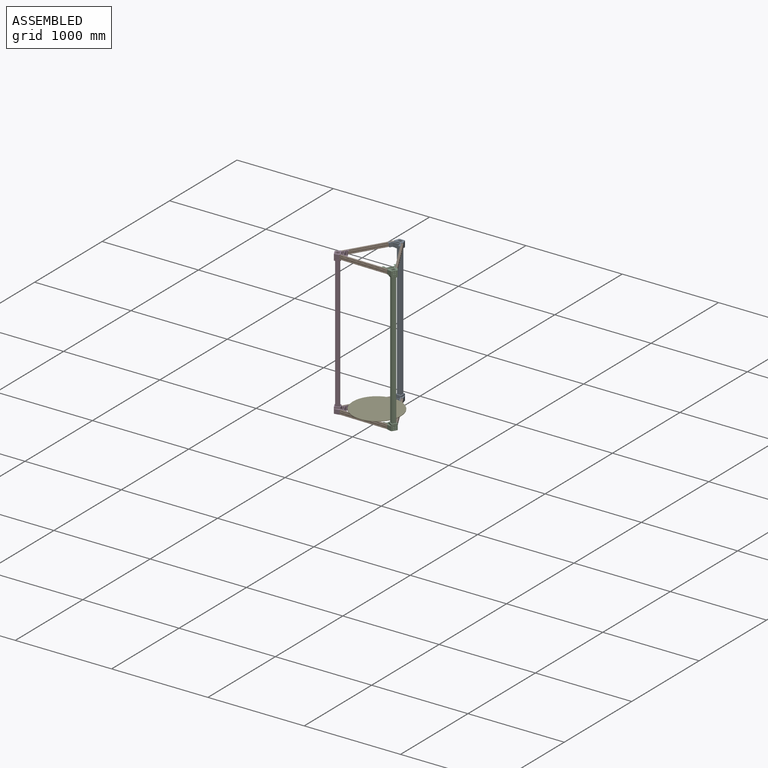
[diagram: assembled view]
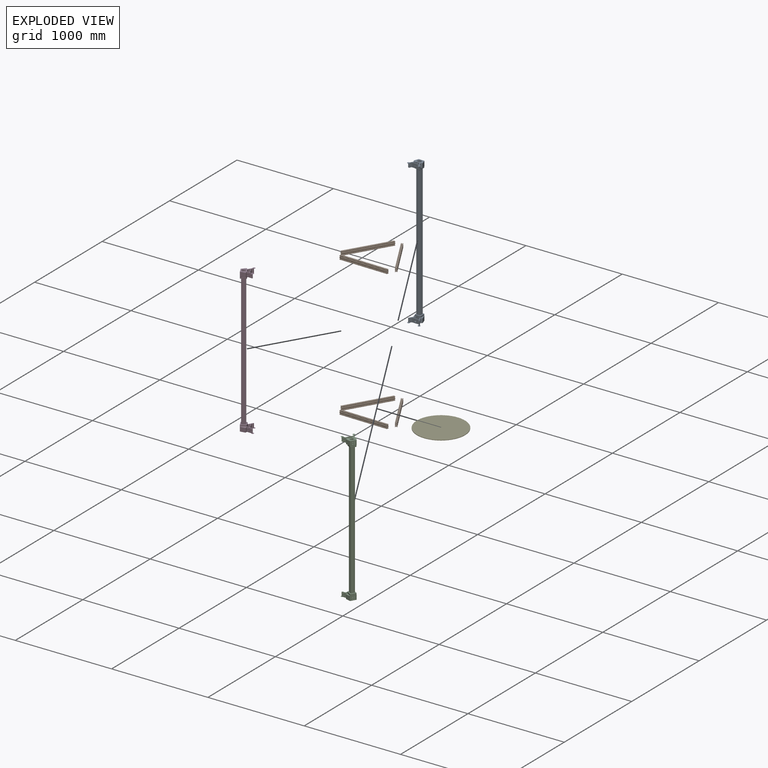
[diagram: exploded view]
GUIDED TOUR — MATED ASSEMBLY WITH SUBASSEMBLIES (Onshape document 57f339af546dad10b447824a, AutoMate assembly 57f339af546dad10b447824a_9c79bd40bd12733219195c9b_e9b3cc5fddb4a0eafcfcd37a_default)

This assembly has 16 component occurrences arranged in 5 top-level units: 1 individual components plus 4 subassemblies (S0, S1, S2, S3). The tour has two levels: first the top level, where each subassembly is treated as one rigid unit; then each subassembly is toured internally in its own section (nesting deeper than one subassembly level is flattened into its subassembly's section).

Components are labeled P0..P15 across the whole record; subassembly units are labeled S0..S3. A mate is a constraint between two units; its type names the relative motion it leaves free:
  FASTENED — locks the two components together rigidly (no relative motion),
  PIN_SLOT — leaves rotation about the listed axis plus translation along a slot free,
  PLANAR — leaves sliding in the plane through the listed point (normal = the listed direction) and rotation about that normal free.
Axis/direction vectors are unit vectors and 'through' points are millimeter coordinates, both in the assembly's world frame.

TOP-LEVEL MATES (between units; each subassembly's internal mates are listed in its own section)
  1. PLANAR "Planar 2": S1 <-> S2, direction (-0.873, -0.487, 0.000) through (192.73, 399.21, -29.00) mm
  2. PIN_SLOT "Pin slot 5": S1 <-> S3, axis (-0.513, -0.858, 0.000) through (-254.05, 194.38, -19.00) mm
  3. PIN_SLOT "Pin slot 8": S1 <-> S0, axis (-0.487, 0.873, 0.000) through (79.72, 622.44, 1436.00) mm
  4. PLANAR "Planar 1": S1 <-> S0, direction (-0.873, -0.487, 0.000) through (192.73, 399.21, -29.00) mm
  5. PLANAR "Planar 5": S1 <-> S3, direction (0.858, -0.513, 0.000) through (-117.24, 403.86, -29.00) mm
  6. PLANAR "Planar 11": S1 <-> S2, direction (-0.873, -0.487, 0.000) through (192.73, 399.21, 1426.00) mm
  7. PIN_SLOT "Pin slot 4": S1 <-> S0, axis (0.487, -0.873, 0.000) through (79.72, 622.44, -19.00) mm
  8. PLANAR "Planar 12": P12 <-> S0, direction (0.000, 0.000, -1.000) through (34.66, 312.58, -6.50) mm
  9. PIN_SLOT "Pin slot 1": S1 <-> S3, axis (-1.000, 0.015, 0.000) through (-216.40, 126.85, -19.00) mm
  10. PIN_SLOT "Pin slot 2": S1 <-> S2, axis (1.000, -0.015, 0.000) through (283.54, 119.35, -19.00) mm
  11. PLANAR "Planar 6": S1 <-> S0, direction (0.858, -0.513, 0.000) through (-117.24, 403.86, -29.00) mm
  12. PIN_SLOT "Pin slot 3": S1 <-> S2, axis (0.487, -0.873, 0.000) through (323.20, 185.72, -19.00) mm
  13. PLANAR "Planar 7": S1 <-> S0, direction (0.858, -0.513, 0.000) through (-117.24, 403.86, 1426.00) mm
  14. PIN_SLOT "Pin slot 7": S1 <-> S2, axis (1.000, -0.015, 0.000) through (283.54, 119.35, 1436.00) mm
  15. PLANAR "Planar 3": S1 <-> S2, direction (0.015, 1.000, 0.000) through (33.72, 133.10, -29.00) mm
  16. PLANAR "Planar 4": S3 <-> S1, direction (-0.015, -1.000, 0.000) through (-187.12, 136.41, -29.00) mm
  17. PIN_SLOT "Pin slot 6": S1 <-> S0, axis (-0.513, -0.858, 0.000) through (2.41, 623.60, 1436.00) mm
  18. PLANAR "Planar 9": S1 <-> S3, direction (0.015, 1.000, 0.000) through (33.72, 133.10, 1426.00) mm
  19. PLANAR "Planar 8": S1 <-> S3, direction (0.858, -0.513, 0.000) through (-117.24, 403.86, 1426.00) mm

TOP-LEVEL ASSEMBLY ORDER
  1. S1 — the base component [order heuristic]
  2. S2 — core [order heuristic]
  3. S0 — core [order heuristic]
  4. S3 — core [order heuristic]
  5. P12 [order verified]
Order-tag legend:
  [order verified] — this step's position reverses a verified removal order: the component was checked to insert without passing through the ones already placed.
  [order heuristic] — the first 4 components form the assembly's core: parts whose collision-free extraction could not be verified, listed in mate-graph order.

Of the 16 component occurrences, 1 carries the full construction recipe — the FeatureScript program that regenerates the part's solid from scratch; the rest are supplied as boundary geometry only. Each toured unit is shown spotlighted twice — assembled, then exploded with a leader line back to its socket (green = recipe-attached component, orange = geometry-only, blue = subassembly unit; the rest desaturated gray).
NOTE — document 2 of 2 of this assembly tour. The two overview renders and the header above are repeated from document 1; the component sections below continue where the previous document stopped.
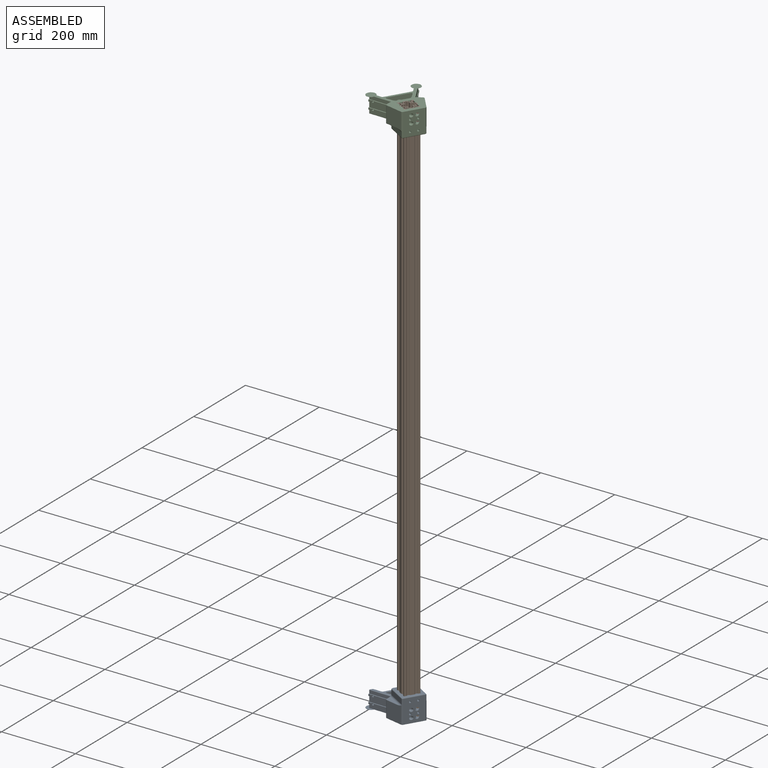
[diagram: subassembly S2 — assembled view]
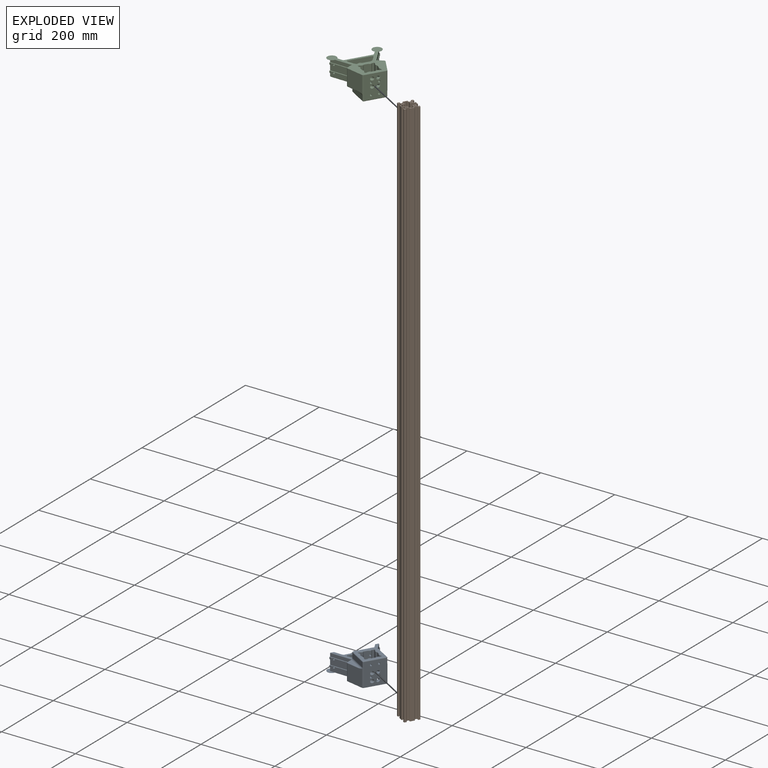
[diagram: subassembly S2 — exploded view]
SUBASSEMBLY S2 TOUR — 3 components, shown here in isolation at its own camera.

INTERNAL MATES
  1. FASTENED "Fastened 1": P3 <-> P10, direction (-0.858, 0.513, 0.000) through (342.04, 129.43, -51.50) mm
  2. FASTENED "Fastened 2": P13 <-> P10, direction (-0.858, 0.513, 0.000) through (342.04, 129.43, 1448.50) mm
  3. FASTENED "Fastened 2": P13 <-> P10, direction (-0.858, 0.513, 0.000) through (342.04, 129.43, 1448.50) mm
  4. FASTENED "Fastened 1": P3 <-> P10, direction (-0.858, 0.513, 0.000) through (342.04, 129.43, -51.50) mm

ASSEMBLY ORDER (within the subassembly)
  1. P10 — the base component [order verified]
  2. P3 [order verified]
  3. P13 [order verified]
Order-tag legend:
  [order verified] — this step's position reverses a verified removal order: the component was checked to insert without passing through the ones already placed.
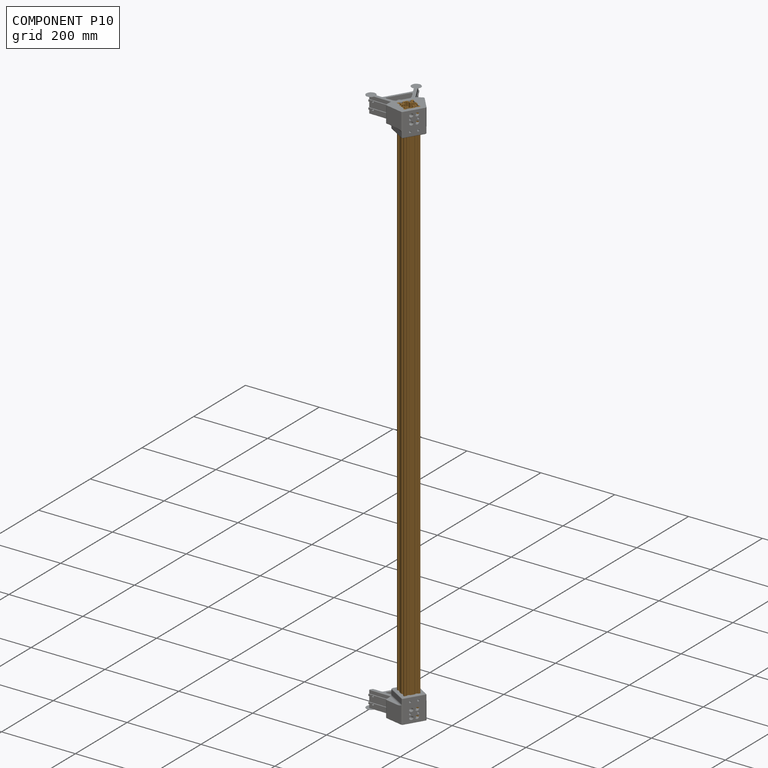
[diagram: component P10 — assembled]
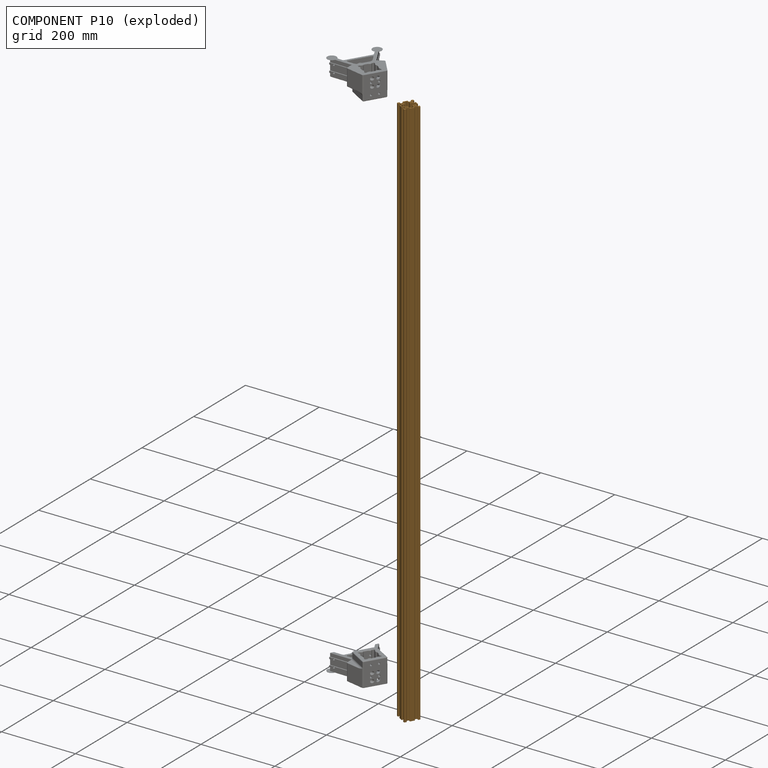
[diagram: component P10 — exploded]
COMPONENT P10 — geometry summary (no construction recipe available for this part):
  bounding box: 1500.0 x 53.5 x 53.5 mm
  B-rep topology: 1 solid, 166 faces, 992 edges
  volume: 687694 mm^3 (16% of its bounding box)
  symmetry: 2-fold rotationally symmetric about the x axis; 2-fold rotationally symmetric about the y axis; revolution-symmetric about the z axis through its bounding-box center; mirror-symmetric across its x mid-plane, y mid-plane, z mid-plane
Held by: FASTENED mate "Fastened 1" to P3; FASTENED mate "Fastened 2" to P13; FASTENED mate "Fastened 2" to P13; FASTENED mate "Fastened 1" to P3.
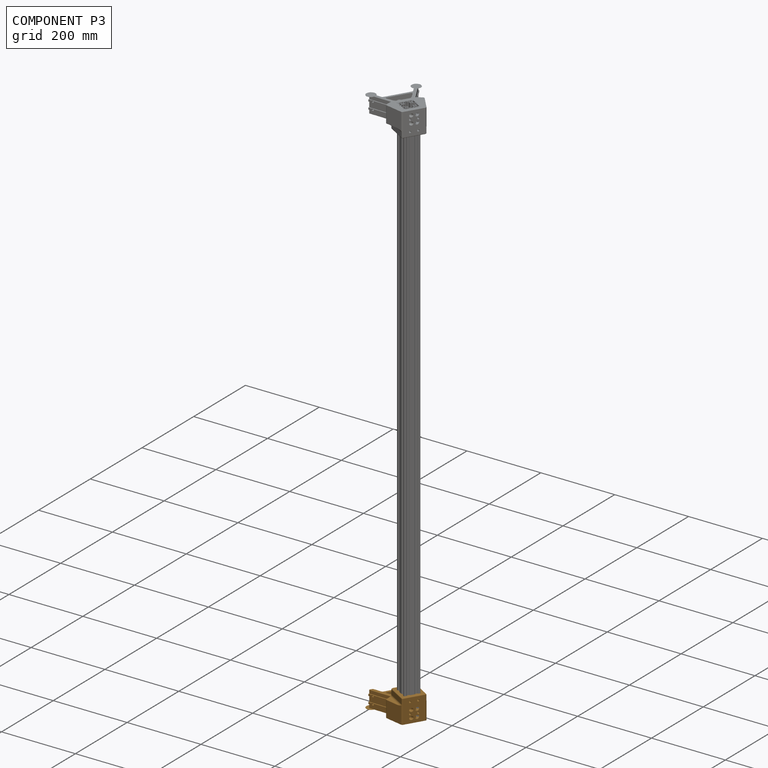
[diagram: component P3 — assembled]
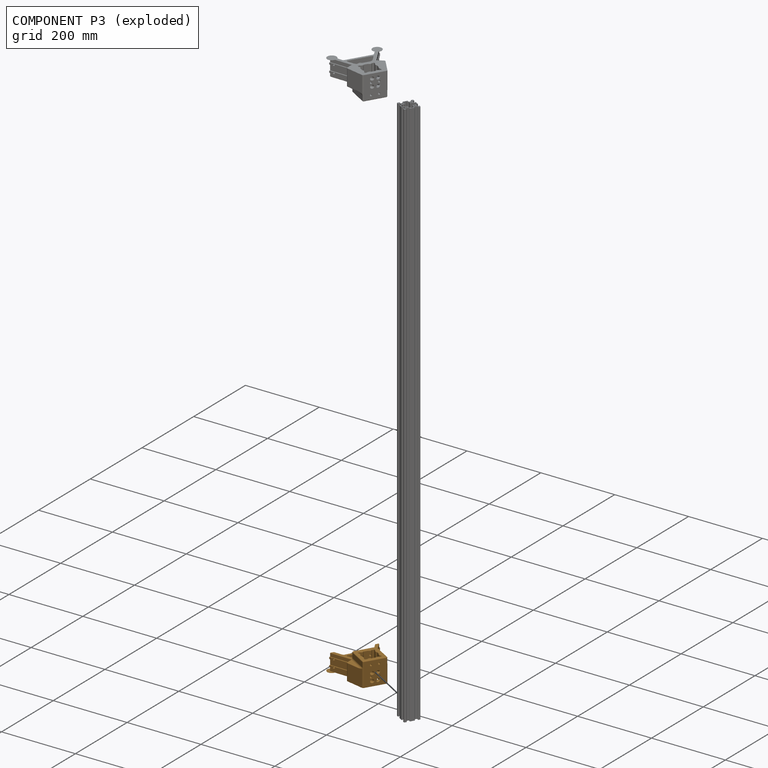
[diagram: component P3 — exploded]
COMPONENT P3 — geometry summary (no construction recipe available for this part):
  bounding box: 135.0 x 129.0 x 67.0 mm
  B-rep topology: 1 solid, 270 faces, 1492 edges
  volume: 234750 mm^3 (20% of its bounding box)
  symmetry: mirror-symmetric across its x mid-plane
Held by: FASTENED mate "Fastened 1" to P10; FASTENED mate "Fastened 1" to P10.
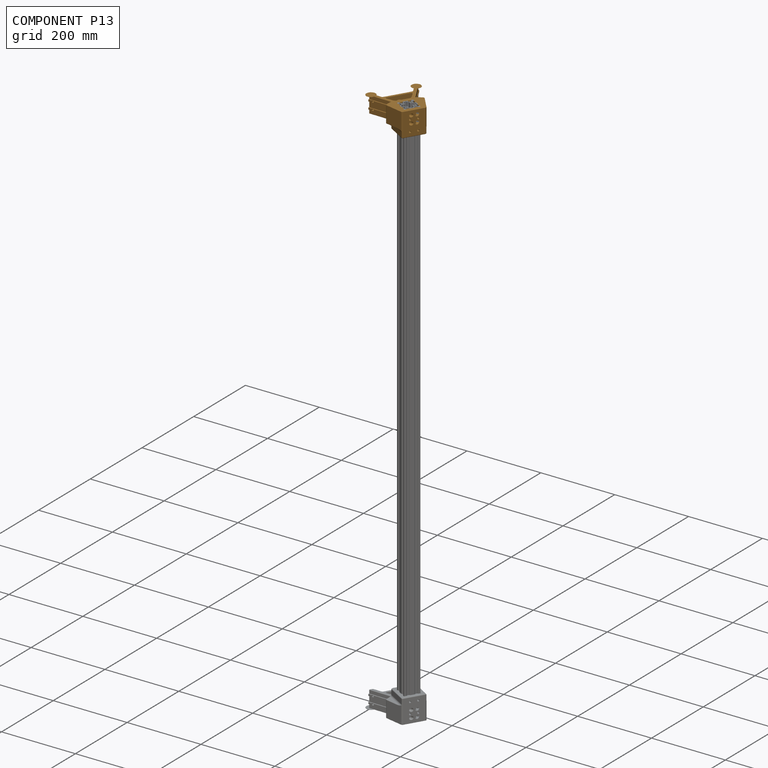
[diagram: component P13 — assembled]
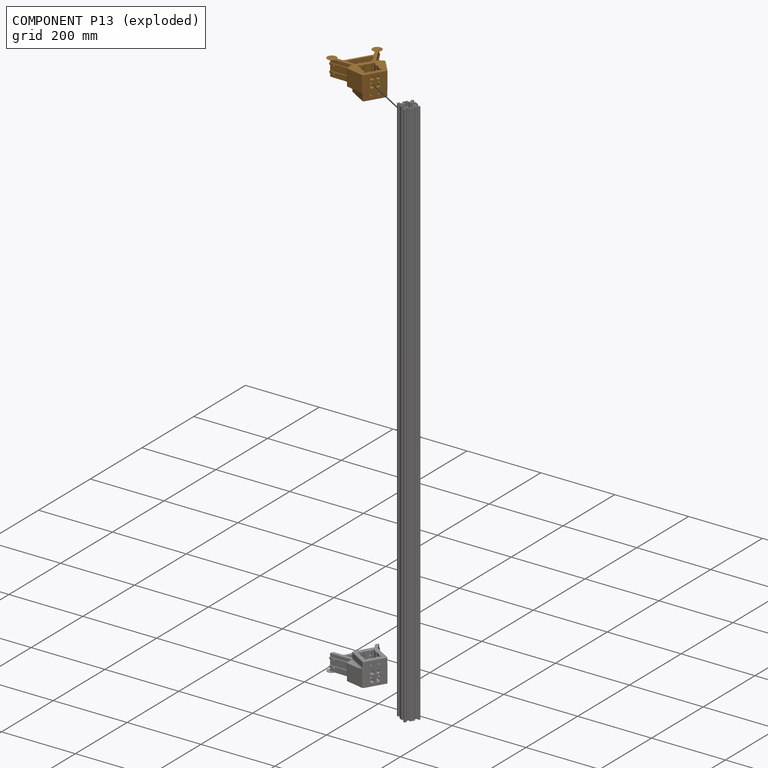
[diagram: component P13 — exploded]
COMPONENT P13 — geometry summary (no construction recipe available for this part):
  bounding box: 135.0 x 129.0 x 67.0 mm
  B-rep topology: 1 solid, 277 faces, 1530 edges
  volume: 238581 mm^3 (20% of its bounding box)
  symmetry: mirror-symmetric across its x mid-plane
Held by: FASTENED mate "Fastened 2" to P10; FASTENED mate "Fastened 2" to P10.
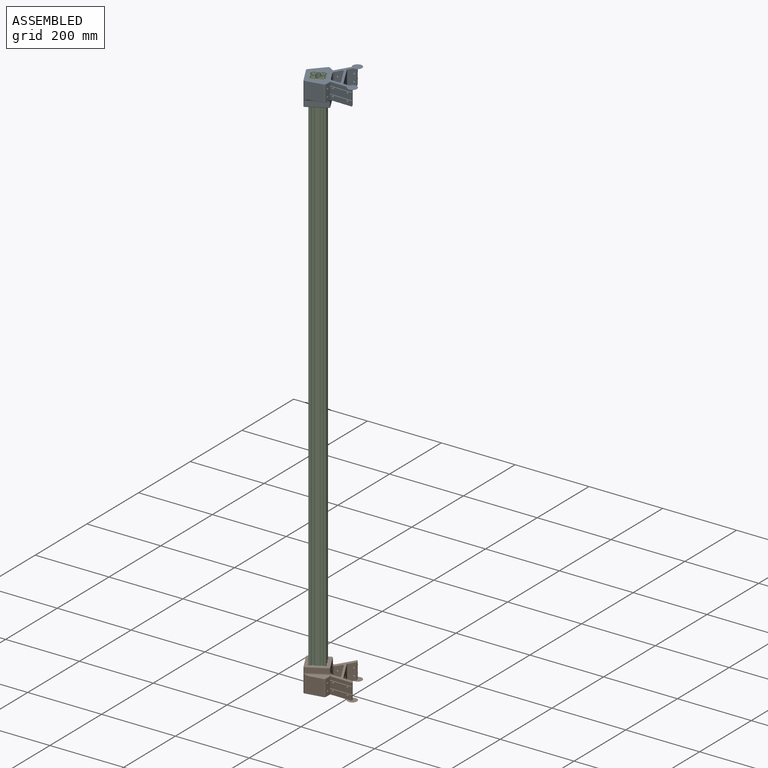
[diagram: subassembly S3 — assembled view]
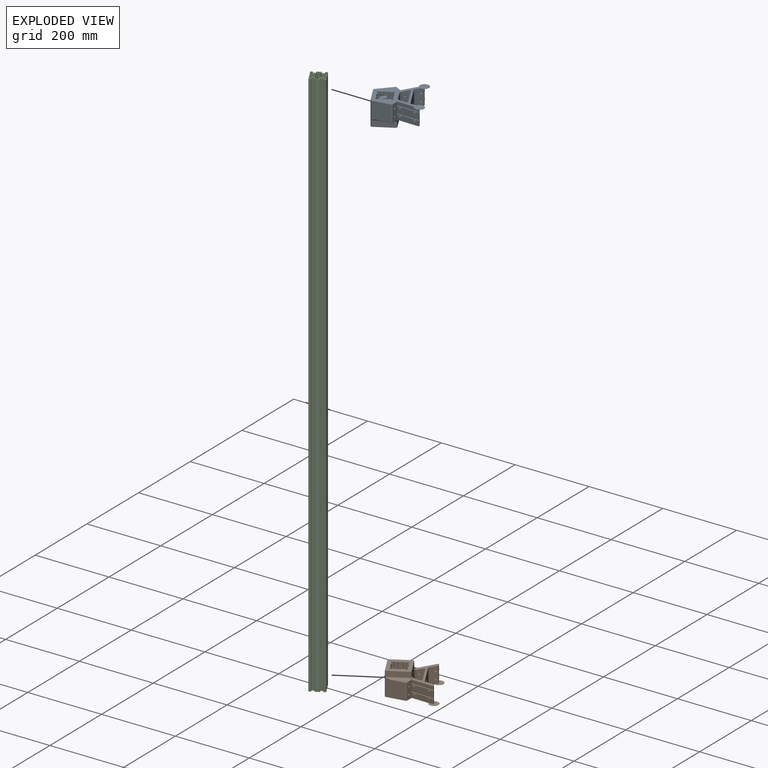
[diagram: subassembly S3 — exploded view]
SUBASSEMBLY S3 TOUR — 3 components, shown here in isolation at its own camera.

INTERNAL MATES
  1. FASTENED "Fastened 1": P9 <-> P11, direction (0.873, 0.487, 0.000) through (-274.58, 138.68, -51.50) mm
  2. FASTENED "Fastened 2": P4 <-> P11, direction (0.873, 0.487, 0.000) through (-274.58, 138.68, 1448.50) mm
  3. FASTENED "Fastened 2": P4 <-> P11, direction (0.873, 0.487, 0.000) through (-274.58, 138.68, 1448.50) mm
  4. FASTENED "Fastened 1": P9 <-> P11, direction (0.873, 0.487, 0.000) through (-274.58, 138.68, -51.50) mm

ASSEMBLY ORDER (within the subassembly)
  1. P11 — the base component [order verified]
  2. P9 [order verified]
  3. P4 [order verified]
Order-tag legend:
  [order verified] — this step's position reverses a verified removal order: the component was checked to insert without passing through the ones already placed.
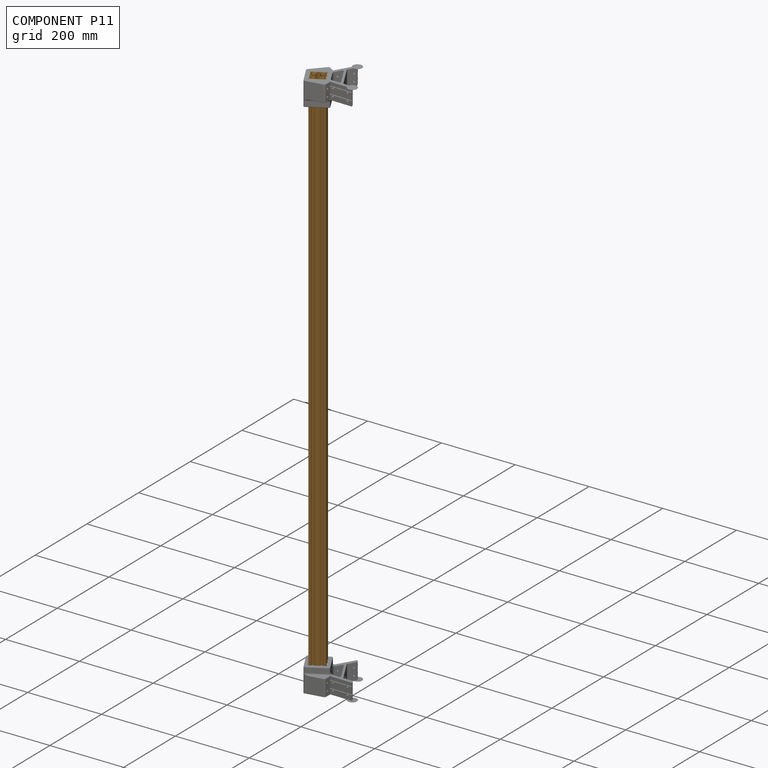
[diagram: component P11 — assembled]
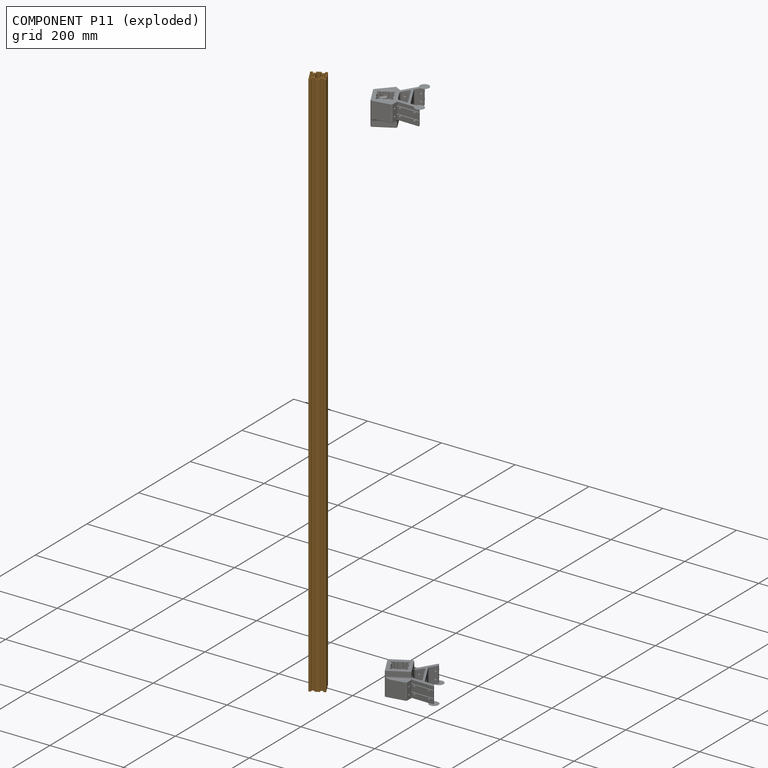
[diagram: component P11 — exploded]
COMPONENT P11 — geometry summary (no construction recipe available for this part):
  bounding box: 1500.0 x 53.5 x 53.5 mm
  B-rep topology: 1 solid, 166 faces, 992 edges
  volume: 687694 mm^3 (16% of its bounding box)
  symmetry: 2-fold rotationally symmetric about the x axis; 2-fold rotationally symmetric about the y axis; revolution-symmetric about the z axis through its bounding-box center; mirror-symmetric across its x mid-plane, y mid-plane, z mid-plane
Held by: FASTENED mate "Fastened 1" to P9; FASTENED mate "Fastened 2" to P4; FASTENED mate "Fastened 2" to P4; FASTENED mate "Fastened 1" to P9.
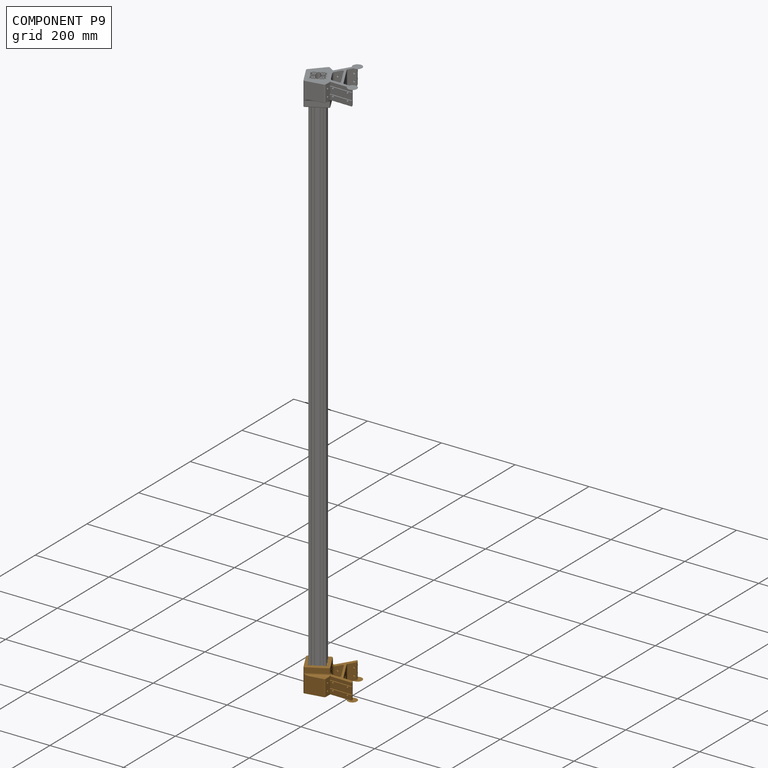
[diagram: component P9 — assembled]
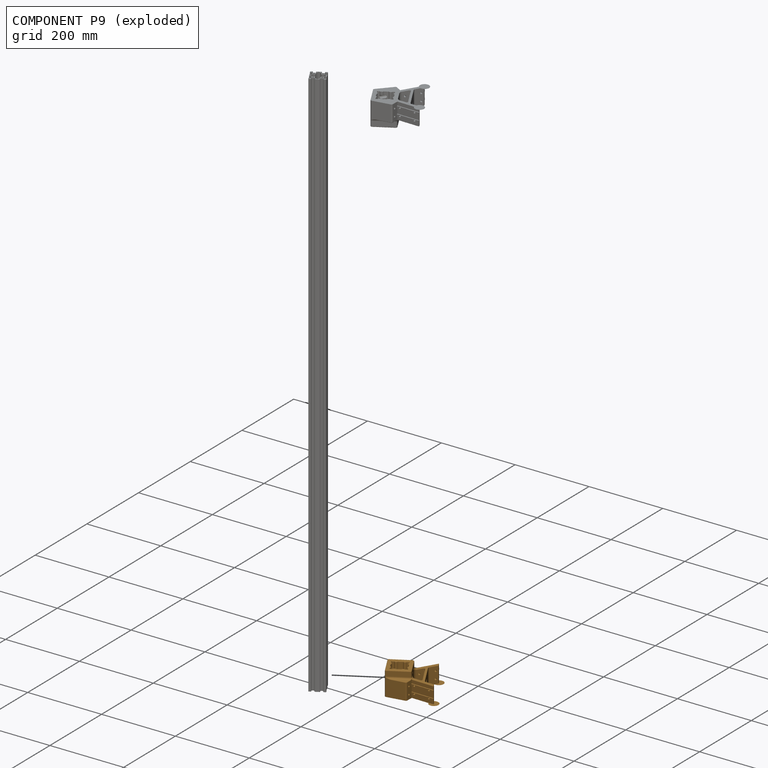
[diagram: component P9 — exploded]
COMPONENT P9 — geometry summary (no construction recipe available for this part):
  bounding box: 135.0 x 129.0 x 67.0 mm
  B-rep topology: 1 solid, 270 faces, 1492 edges
  volume: 234750 mm^3 (20% of its bounding box)
  symmetry: mirror-symmetric across its x mid-plane
Held by: FASTENED mate "Fastened 1" to P11; FASTENED mate "Fastened 1" to P11.
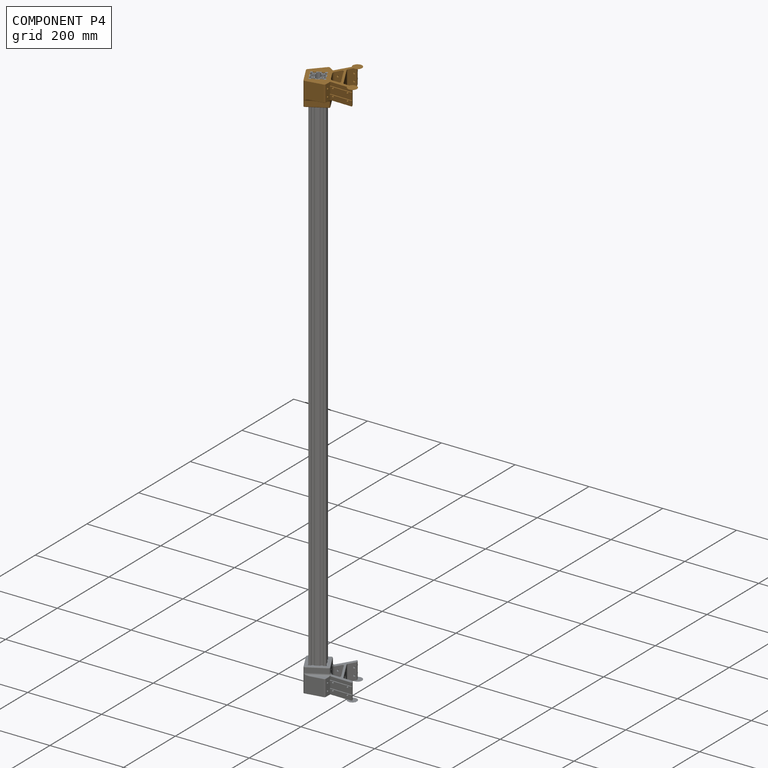
[diagram: component P4 — assembled]
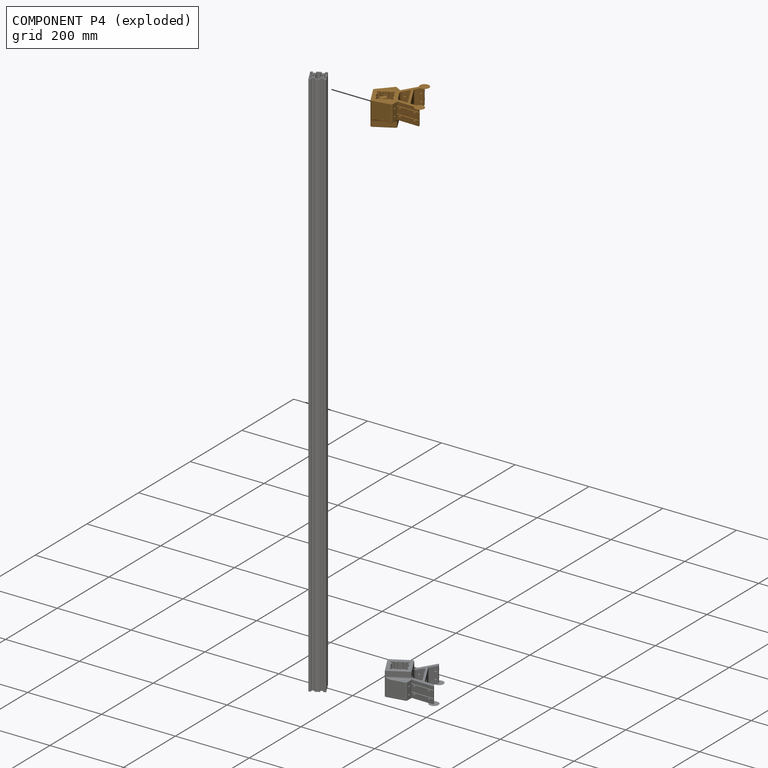
[diagram: component P4 — exploded]
COMPONENT P4 — geometry summary (no construction recipe available for this part):
  bounding box: 135.0 x 129.0 x 67.0 mm
  B-rep topology: 1 solid, 277 faces, 1530 edges
  volume: 238581 mm^3 (20% of its bounding box)
  symmetry: mirror-symmetric across its x mid-plane
Held by: FASTENED mate "Fastened 2" to P11; FASTENED mate "Fastened 2" to P11.
PROVENANCE & LICENSES
Assembly (occurrences, transforms, mates, per-part STEP geometry): AutoMate dataset, Zenodo record 7776208, CC0.
Construction recipes: CADFS (HuggingFace VladPyatov/CADFS, CC-BY-4.0, layered over the ABC dataset), FeatureScript reconstruction programs keyed by ABC model id.
Join: ABC meta listings map ABC model id -> Onshape documentId; within a shared document, parts are matched by geometric signature (bounding-box dims + volume at 0.1% relative tolerance, exact B-rep face/solid counts).
Verification: 1 of this assembly's 16 components carries a recipe attachment, and every attachment is mesh-verified: the CADFS STEP and the AutoMate member STEP were compared as meshes in their shared local frame (symmetric sampled-point-to-mesh distance); worst across the 1 attachment: below the mesh-comparison resolution (tessellation chordal tolerance ~1.06 mm) on a 706 mm part.
Renders: orthographic iso camera (az 35 / el 25); the floor grid conveys scale (grid pitch printed in each image; no ruler). In the exploded view each component is displaced by its stored offset vector: the offsets alone carry the explosion direction (mate normal/axis signs are not orientation cues and do not encode it), and separation distances are assigned per mate-chain, not proportionally to assembly-order depth.
